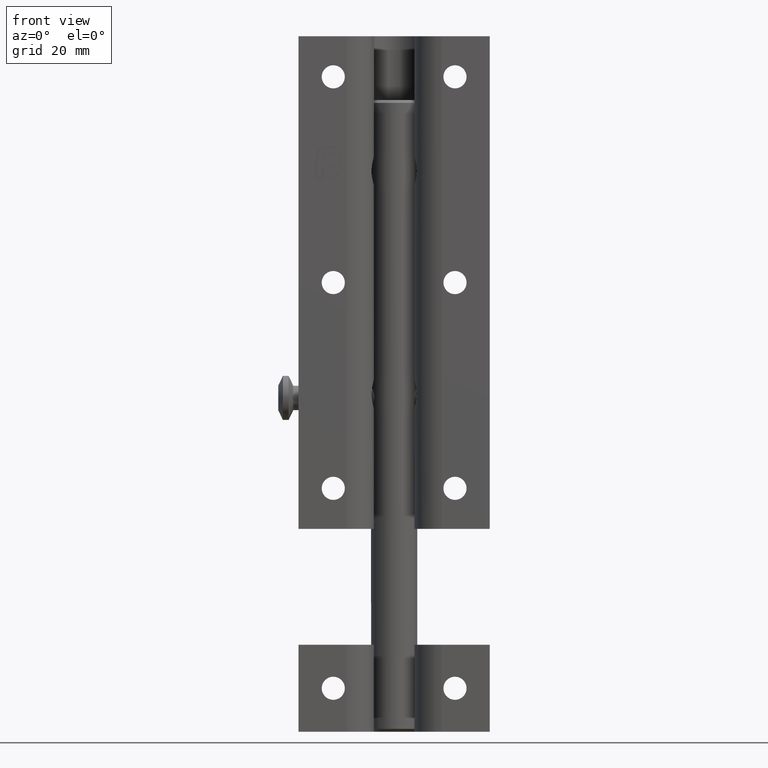
[diagram: clean part render]
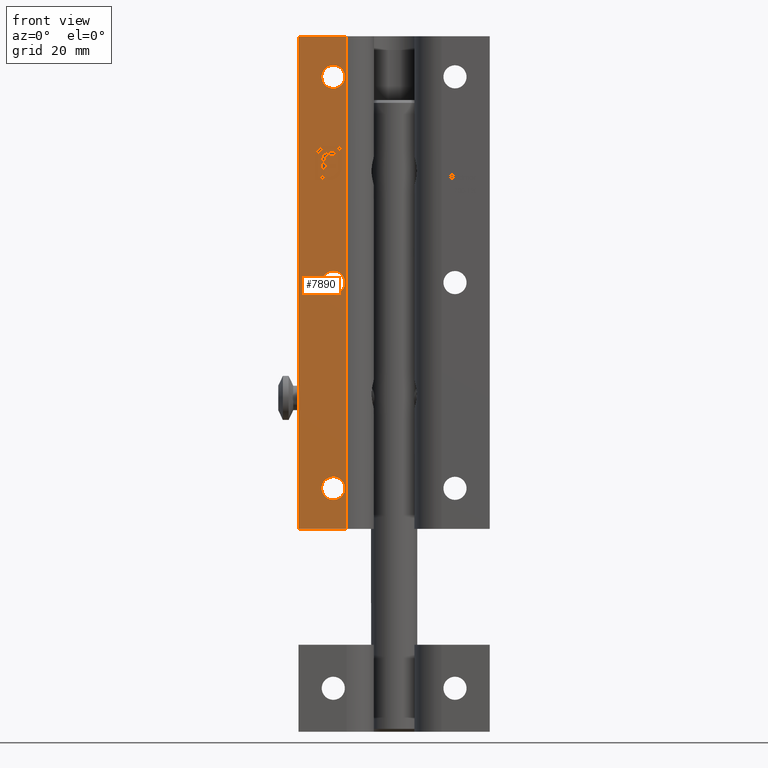
[diagram: same view with one face highlighted and labeled with its STEP entity id]
A machine part, front view. The second image highlights one B-rep face of the part: STEP entity #7890.
In plain terms, the highlighted planar face has unit normal (0, 1, 0).
Its self-contained STEP definition (entity closure, byte-faithful):
#5 = B_SPLINE_CURVE_WITH_KNOTS ( 'NONE', 3,
 ( #12365, #8863, #4157, #14692, #2925, #663, #611 ),
 .UNSPECIFIED., .F., .F.,
 ( 4, 1, 1, 1, 4 ),
 ( 0.000000000000000000, 0.2322642840963121125, 0.4732806422658384360, 0.7304408643756860053, 1.000000000000000000 ),
 .UNSPECIFIED. ) ;
#38 = LINE ( 'NONE', #7844, #11019 ) ;
#64 = VECTOR ( 'NONE', #6752, 1000.000000000000000 ) ;
#91 = EDGE_LOOP ( 'NONE', ( #8693 ) ) ;
#133 = CARTESIAN_POINT ( 'NONE',  ( -12.69690188624744565, -0.000000000000000000, 22.69015652631569324 ) ) ;
#189 = LINE ( 'NONE', #3848, #7478 ) ;
#273 = CARTESIAN_POINT ( 'NONE',  ( -9.570087980695310748, 0.000000000000000000, 19.71874271052017136 ) ) ;
#277 = CARTESIAN_POINT ( 'NONE',  ( -11.34230963247440016, -0.000000000000000000, 21.91688288526629336 ) ) ;
#363 = CARTESIAN_POINT ( 'NONE',  ( -10.45621053025209690, 0.000000000000000000, 17.84987442251265577 ) ) ;
#422 = CARTESIAN_POINT ( 'NONE',  ( -12.55352628253809222, 0.000000000000000000, 20.89089106601352341 ) ) ;
#428 = B_SPLINE_CURVE_WITH_KNOTS ( 'NONE', 3,
 ( #2141, #15184, #5580, #3324, #11550, #10405, #12762 ),
 .UNSPECIFIED., .F., .F.,
 ( 4, 1, 1, 1, 4 ),
 ( 0.000000000000000000, 0.2498987543963730462, 0.4978226843676606950, 0.7474950417136806413, 1.000000000000000000 ),
 .UNSPECIFIED. ) ;
#472 = CARTESIAN_POINT ( 'NONE',  ( -12.77022806409681799, -0.000000000000000000, 23.21551869685290370 ) ) ;
#497 = CARTESIAN_POINT ( 'NONE',  ( -16.50000000000000000, 0.000000000000000000, 42.50000000000000000 ) ) ;
#523 = CARTESIAN_POINT ( 'NONE',  ( -12.90485994491887745, 0.000000000000000000, 23.12499343832573118 ) ) ;
#584 = EDGE_CURVE ( 'NONE', #2924, #5980, #4849, .T. ) ;
#593 = CARTESIAN_POINT ( 'NONE',  ( -12.13598487829270134, 0.000000000000000000, 22.15051317937951936 ) ) ;
#611 = CARTESIAN_POINT ( 'NONE',  ( -11.92371522585509602, 0.000000000000000000, 20.99352694191741975 ) ) ;
#640 = CARTESIAN_POINT ( 'NONE',  ( -9.574044612061172188, 0.000000000000000000, 19.56686205174298010 ) ) ;
#652 = EDGE_CURVE ( 'NONE', #2136, #10787, #7094, .T. ) ;
#659 = VECTOR ( 'NONE', #3594, 1000.000000000000000 ) ;
#663 = CARTESIAN_POINT ( 'NONE',  ( -11.92316261221855278, -0.000000000000000000, 21.03165981375859062 ) ) ;
#681 = B_SPLINE_CURVE_WITH_KNOTS ( 'NONE', 3,
 ( #5861, #8212, #1184, #9416, #10594, #277, #13303 ),
 .UNSPECIFIED., .F., .F.,
 ( 4, 1, 1, 1, 4 ),
 ( 0.000000000000000000, 0.2664516210972247001, 0.5206311952944914223, 0.7658567945036373059, 0.9999999999999998890 ),
 .UNSPECIFIED. ) ;
#720 = EDGE_CURVE ( 'NONE', #886, #13895, #10531, .T. ) ;
#747 = CARTESIAN_POINT ( 'NONE',  ( -12.09908744346555309, -0.000000000000000000, 22.18455870272804731 ) ) ;
#753 = DIRECTION ( 'NONE',  ( -1.000000000000000000, -0.000000000000000000, 6.709858232943713884E-14 ) ) ;
#775 = CARTESIAN_POINT ( 'NONE',  ( -10.96383652279934573, 0.000000000000000000, 21.96973407977606030 ) ) ;
#798 = CARTESIAN_POINT ( 'NONE',  ( -11.69222207022450277, -0.000000000000000000, 21.69614473609307836 ) ) ;
#845 = ORIENTED_EDGE ( 'NONE', *, *, #8572, .T. ) ;
#886 = VERTEX_POINT ( 'NONE', #5494 ) ;
#899 = CARTESIAN_POINT ( 'NONE',  ( -10.16840848454415713, 0.000000000000000000, 20.45002332633542963 ) ) ;
#951 = CARTESIAN_POINT ( 'NONE',  ( -12.43177719702965511, -0.000000000000000000, 21.68214272666183007 ) ) ;
#963 = VECTOR ( 'NONE', #14155, 1000.000000000000000 ) ;
#965 = CARTESIAN_POINT ( 'NONE',  ( -13.39291631043391817, -0.000000000000000000, 22.52278997167093877 ) ) ;
#979 = CARTESIAN_POINT ( 'NONE',  ( -9.131444099140257009, 0.000000000000000000, 19.43897213634508603 ) ) ;
#1022 = LINE ( 'NONE', #11764, #659 ) ;
#1049 = CARTESIAN_POINT ( 'NONE',  ( -12.13598487829270134, 0.000000000000000000, 22.15051317937951936 ) ) ;
#1059 = EDGE_CURVE ( 'NONE', #12804, #12804, #6459, .T. ) ;
#1067 = DIRECTION ( 'NONE',  ( 0.000000000000000000, 0.000000000000000000, 1.000000000000000000 ) ) ;
#1087 = ORIENTED_EDGE ( 'NONE', *, *, #7187, .T. ) ;
#1128 = CARTESIAN_POINT ( 'NONE',  ( -11.29390416917210338, 0.000000000000000000, 17.74999999999999645 ) ) ;
#1134 = CARTESIAN_POINT ( 'NONE',  ( -12.58857845192289915, 0.000000000000000000, 23.33055564719492025 ) ) ;
#1146 = VECTOR ( 'NONE', #14852, 1000.000000000000000 ) ;
#1150 = DIRECTION ( 'NONE',  ( 1.000000000000000000, -0.000000000000000000, 1.312369330855249872E-13 ) ) ;
#1174 = ORIENTED_EDGE ( 'NONE', *, *, #4021, .T. ) ;
#1184 = CARTESIAN_POINT ( 'NONE',  ( -11.07311716208377383, 0.000000000000000000, 21.96869057037744355 ) ) ;
#1228 = EDGE_CURVE ( 'NONE', #7846, #13739, #5569, .T. ) ;
#1254 = VERTEX_POINT ( 'NONE', #9173 ) ;
#1282 = CARTESIAN_POINT ( 'NONE',  ( -10.16840848454415536, 0.000000000000000000, 22.26889433170049060 ) ) ;
#1283 = CARTESIAN_POINT ( 'NONE',  ( -12.46745644286169252, 0.000000000000000000, 23.38761986358497680 ) ) ;
#1330 = LINE ( 'NONE', #4761, #1146 ) ;
#1341 = DIRECTION ( 'NONE',  ( -1.000000000000000000, -0.000000000000000000, 0.000000000000000000 ) ) ;
#1355 = EDGE_CURVE ( 'NONE', #8384, #11103, #2993, .T. ) ;
#1367 = CARTESIAN_POINT ( 'NONE',  ( -10.33875719283899741, 0.000000000000000000, 17.89448610010956031 ) ) ;
#1435 = VERTEX_POINT ( 'NONE', #5464 ) ;
#1463 = CARTESIAN_POINT ( 'NONE',  ( -12.55352628253809577, 0.000000000000000000, 19.54904362024725728 ) ) ;
#1486 = EDGE_CURVE ( 'NONE', #2832, #2136, #11038, .T. ) ;
#1510 = CARTESIAN_POINT ( 'NONE',  ( -10.50000000000000000, 0.000000000000000000, 35.50000000000000000 ) ) ;
#1515 = AXIS2_PLACEMENT_3D ( 'NONE', #497, #10901, #1655 ) ;
#1516 = CARTESIAN_POINT ( 'NONE',  ( -10.95184287353608887, 0.000000000000000000, 17.75123438543622356 ) ) ;
#1522 = CARTESIAN_POINT ( 'NONE',  ( -11.40161551192380784, -0.000000000000000000, 21.89592991637973540 ) ) ;
#1578 = CARTESIAN_POINT ( 'NONE',  ( -11.67179080318189932, 0.000000000000000000, 21.71780965710286182 ) ) ;
#1599 = CARTESIAN_POINT ( 'NONE',  ( -13.17139649094001363, 0.000000000000000000, 21.74337589016202799 ) ) ;
#1607 = PLANE ( 'NONE',  #1515 ) ;
#1655 = DIRECTION ( 'NONE',  ( 0.000000000000000000, -0.000000000000000000, 1.000000000000000000 ) ) ;
#1682 = CARTESIAN_POINT ( 'NONE',  ( -12.70281482930739436, 0.000000000000000000, 23.26084674597620250 ) ) ;
#1687 = EDGE_CURVE ( 'NONE', #10359, #4895, #8654, .T. ) ;
#1727 = DIRECTION ( 'NONE',  ( 0.000000000000000000, -0.000000000000000000, -1.000000000000000000 ) ) ;
#1813 = CARTESIAN_POINT ( 'NONE',  ( -9.983325436185072732, -0.000000000000000000, 18.68546741005317813 ) ) ;
#1909 = CARTESIAN_POINT ( 'NONE',  ( -12.86434970217886864, 0.000000000000000000, 18.20719617448098759 ) ) ;
#1923 = CARTESIAN_POINT ( 'NONE',  ( -10.01911993777485499, 0.000000000000000000, 18.64806391415908138 ) ) ;
#1951 = CARTESIAN_POINT ( 'NONE',  ( -9.343350340935980824, 0.000000000000000000, 18.79821984933514756 ) ) ;
#1984 = AXIS2_PLACEMENT_3D ( 'NONE', #1510, #3845, #2811 ) ;
#1989 = VERTEX_POINT ( 'NONE', #3462 ) ;
#2025 = CARTESIAN_POINT ( 'NONE',  ( -10.85303642949400427, 0.000000000000000000, 22.56805458362491024 ) ) ;
#2101 = EDGE_CURVE ( 'NONE', #6298, #4169, #14548, .T. ) ;
#2136 = VERTEX_POINT ( 'NONE', #11080 ) ;
#2141 = CARTESIAN_POINT ( 'NONE',  ( -12.21529441876389122, 0.000000000000000000, 23.48128061581525117 ) ) ;
#2144 = VERTEX_POINT ( 'NONE', #14356 ) ;
#2176 = VERTEX_POINT ( 'NONE', #14752 ) ;
#2192 = CARTESIAN_POINT ( 'NONE',  ( -11.08163451673449984, 0.000000000000000000, 18.20719617448098759 ) ) ;
#2212 = VECTOR ( 'NONE', #6517, 1000.000000000000000 ) ;
#2233 = CARTESIAN_POINT ( 'NONE',  ( -13.63236929630062910, 0.000000000000000000, 21.59184744576626613 ) ) ;
#2243 = VECTOR ( 'NONE', #1341, 1000.000000000000000 ) ;
#2311 = CARTESIAN_POINT ( 'NONE',  ( -8.192006389780432940, 0.000000000000000000, 42.50000000000000000 ) ) ;
#2351 = CARTESIAN_POINT ( 'NONE',  ( -13.37228065622598550, 0.000000000000000000, 22.55989036622345978 ) ) ;
#2355 = CARTESIAN_POINT ( 'NONE',  ( -13.59848727808208046, 0.000000000000000000, 21.97507104235164022 ) ) ;
#2381 = VERTEX_POINT ( 'NONE', #10604 ) ;
#2390 = DIRECTION ( 'NONE',  ( 1.000000000000000000, -0.000000000000000000, -4.600057448358230921E-14 ) ) ;
#2391 = EDGE_CURVE ( 'NONE', #11697, #10359, #13993, .T. ) ;
#2439 = CARTESIAN_POINT ( 'NONE',  ( -10.50397396307363884, 0.000000000000000000, 18.31455321570878425 ) ) ;
#2494 = CARTESIAN_POINT ( 'NONE',  ( -10.78257826070950465, 0.000000000000000000, 18.23300091817587187 ) ) ;
#2527 = CARTESIAN_POINT ( 'NONE',  ( -11.81550724455764367, 0.000000000000000000, 23.09943735043959379 ) ) ;
#2543 = CARTESIAN_POINT ( 'NONE',  ( -11.60064548011215280, 0.000000000000000000, 22.46541870772101035 ) ) ;
#2544 = EDGE_CURVE ( 'NONE', #11103, #3360, #3709, .T. ) ;
#2579 = CARTESIAN_POINT ( 'NONE',  ( -10.16840848454415713, 0.000000000000000000, 21.96973407977606030 ) ) ;
#2599 = CARTESIAN_POINT ( 'NONE',  ( -10.49999999999999467, 0.000000000000000000, 2.000000000000004441 ) ) ;
#2618 = B_SPLINE_CURVE_WITH_KNOTS ( 'NONE', 3,
 ( #2192, #3472, #10952, #2494, #9472, #2439, #9870, #8637, #7151, #10649, #5153 ),
 .UNSPECIFIED., .F., .F.,
 ( 4, 1, 1, 1, 1, 1, 1, 1, 4 ),
 ( 0.000000000000000000, 0.1294032821351885076, 0.2549994687370267243, 0.3777808395091697413, 0.4991864763960283669, 0.6218805796820386922, 0.7445786510184780882, 0.8700972851667342356, 1.000000000000000000 ),
 .UNSPECIFIED. ) ;
#2621 = CARTESIAN_POINT ( 'NONE',  ( -10.57615692093563453, 0.000000000000000000, 17.81456692889019067 ) ) ;
#2641 = CARTESIAN_POINT ( 'NONE',  ( -12.83955454898440074, 0.000000000000000000, 22.54474171912547575 ) ) ;
#2714 = DIRECTION ( 'NONE',  ( 0.000000000000000000, -0.000000000000000000, 1.000000000000000000 ) ) ;
#2716 = CARTESIAN_POINT ( 'NONE',  ( -10.15069199082982543, -0.000000000000000000, 17.98945298586670560 ) ) ;
#2774 = VECTOR ( 'NONE', #10888, 1000.000000000000000 ) ;
#2777 = CARTESIAN_POINT ( 'NONE',  ( -13.24196459429893125, 0.000000000000000000, 22.77055036192248494 ) ) ;
#2811 = DIRECTION ( 'NONE',  ( 0.000000000000000000, 0.000000000000000000, 1.000000000000000000 ) ) ;
#2829 = DIRECTION ( 'NONE',  ( 0.000000000000000000, -0.000000000000000000, 1.000000000000000000 ) ) ;
#2832 = VERTEX_POINT ( 'NONE', #6139 ) ;
#2863 = EDGE_CURVE ( 'NONE', #14317, #5604, #6623, .T. ) ;
#2865 = DIRECTION ( 'NONE',  ( 0.000000000000000000, -0.000000000000000000, -1.000000000000000000 ) ) ;
#2869 = ORIENTED_EDGE ( 'NONE', *, *, #3767, .T. ) ;
#2924 = VERTEX_POINT ( 'NONE', #5228 ) ;
#2925 = CARTESIAN_POINT ( 'NONE',  ( -11.92208280351890792, 0.000000000000000000, 21.10617155945853440 ) ) ;
#2963 = CARTESIAN_POINT ( 'NONE',  ( -11.89627783024037733, 0.000000000000000000, 22.33915258651542146 ) ) ;
#2970 = CARTESIAN_POINT ( 'NONE',  ( -10.16840848454415891, 0.000000000000000000, 20.15494518311173522 ) ) ;
#2993 = B_SPLINE_CURVE_WITH_KNOTS ( 'NONE', 3,
 ( #14355, #9667, #2641, #3827, #12035, #13217, #7487, #13266, #1599, #5195, #12179 ),
 .UNSPECIFIED., .F., .F.,
 ( 4, 1, 1, 1, 1, 1, 1, 1, 4 ),
 ( 0.000000000000000000, 0.1299027148332645987, 0.2554213489815209126, 0.3781194203179605862, 0.5008135236039703564, 0.6222191604908284823, 0.7450005312629731646, 0.8705967178648099658, 1.000000000000000000 ),
 .UNSPECIFIED. ) ;
#3013 = CARTESIAN_POINT ( 'NONE',  ( -9.570087980695310748, 0.000000000000000000, 19.71874271052017136 ) ) ;
#3018 = CARTESIAN_POINT ( 'NONE',  ( -16.50000000000000000, 0.000000000000000000, 42.50000000000000000 ) ) ;
#3115 = CARTESIAN_POINT ( 'NONE',  ( -9.912773491867467257, 0.000000000000000000, 18.75919072627215911 ) ) ;
#3134 = ORIENTED_EDGE ( 'NONE', *, *, #652, .T. ) ;
#3142 = CARTESIAN_POINT ( 'NONE',  ( -9.233543222527430316, 0.000000000000000000, 19.03942691184012759 ) ) ;
#3168 = CARTESIAN_POINT ( 'NONE',  ( -9.595386822214036826, 0.000000000000000000, 19.41870722252634707 ) ) ;
#3189 = LINE ( 'NONE', #14052, #6086 ) ;
#3207 = DIRECTION ( 'NONE',  ( -0.000000000000000000, -0.000000000000000000, -1.000000000000000000 ) ) ;
#3255 = CARTESIAN_POINT ( 'NONE',  ( -9.113657664327087460, -0.000000000000000000, 19.67165288250924249 ) ) ;
#3324 = CARTESIAN_POINT ( 'NONE',  ( -11.94339715995553775, 0.000000000000000000, 23.54203786336050896 ) ) ;
#3346 = VERTEX_POINT ( 'NONE', #3892 ) ;
#3352 = CARTESIAN_POINT ( 'NONE',  ( -9.179779169747337875, -0.000000000000000000, 19.21199879414517042 ) ) ;
#3357 = CARTESIAN_POINT ( 'NONE',  ( -11.92371522585509602, 0.000000000000000000, 20.45002332633542963 ) ) ;
#3360 = VERTEX_POINT ( 'NONE', #9681 ) ;
#3419 = CIRCLE ( 'NONE', #11551, 2.000000000000001776 ) ;
#3462 = CARTESIAN_POINT ( 'NONE',  ( -12.21529441876389122, 0.000000000000000000, 23.48128061581525117 ) ) ;
#3472 = CARTESIAN_POINT ( 'NONE',  ( -11.03062479321623712, -0.000000000000000000, 18.20846751926227469 ) ) ;
#3480 = DIRECTION ( 'NONE',  ( 0.000000000000000000, -0.000000000000000000, 1.000000000000000000 ) ) ;
#3539 = CARTESIAN_POINT ( 'NONE',  ( -13.63195476791612570, -0.000000000000000000, 21.63543376702229892 ) ) ;
#3541 = CARTESIAN_POINT ( 'NONE',  ( -11.66362658578045242, 0.000000000000000000, 23.56059015628644104 ) ) ;
#3573 = CARTESIAN_POINT ( 'NONE',  ( -11.92371522585509602, 0.000000000000000000, 19.85986703988802660 ) ) ;
#3592 = VERTEX_POINT ( 'NONE', #3541 ) ;
#3594 = DIRECTION ( 'NONE',  ( 1.000000000000000000, -0.000000000000000000, 0.000000000000000000 ) ) ;
#3642 = ORIENTED_EDGE ( 'NONE', *, *, #15198, .T. ) ;
#3659 = CARTESIAN_POINT ( 'NONE',  ( -11.96366207377427493, 0.000000000000000000, 23.07809514028672027 ) ) ;
#3663 = CARTESIAN_POINT ( 'NONE',  ( -12.66470899290425045, -0.000000000000000000, 23.28409954903684920 ) ) ;
#3709 = LINE ( 'NONE', #13422, #2774 ) ;
#3715 = CARTESIAN_POINT ( 'NONE',  ( -12.25830569245485790, -0.000000000000000000, 23.46756323448721915 ) ) ;
#3767 = EDGE_CURVE ( 'NONE', #4182, #1435, #8803, .T. ) ;
#3812 = CARTESIAN_POINT ( 'NONE',  ( -12.55352628253809222, 0.000000000000000000, 18.20719617448098404 ) ) ;
#3827 = CARTESIAN_POINT ( 'NONE',  ( -12.92770064602586011, 0.000000000000000000, 22.42420653605673309 ) ) ;
#3845 = DIRECTION ( 'NONE',  ( 0.000000000000000000, 1.000000000000000000, 0.000000000000000000 ) ) ;
#3848 = CARTESIAN_POINT ( 'NONE',  ( -10.56612250367175321, 0.000000000000000000, 21.96973407977606030 ) ) ;
#3892 = CARTESIAN_POINT ( 'NONE',  ( -11.66362658578045242, 0.000000000000000000, 23.10339398180545345 ) ) ;
#3898 = CARTESIAN_POINT ( 'NONE',  ( -12.46722257418198510, -0.000000000000000000, 21.57696196464313587 ) ) ;
#3954 = CARTESIAN_POINT ( 'NONE',  ( -11.53419558088301855, 0.000000000000000000, 21.82801641021893246 ) ) ;
#3963 = CARTESIAN_POINT ( 'NONE',  ( -13.63236929630062733, 0.000000000000000000, 19.67092372288312419 ) ) ;
#4021 = EDGE_CURVE ( 'NONE', #3360, #14070, #6042, .T. ) ;
#4084 = VECTOR ( 'NONE', #4771, 1000.000000000000000 ) ;
#4109 = CARTESIAN_POINT ( 'NONE',  ( -9.112891806214323154, 0.000000000000000000, 23.56059015628644104 ) ) ;
#4118 = VERTEX_POINT ( 'NONE', #775 ) ;
#4157 = CARTESIAN_POINT ( 'NONE',  ( -11.89097739048168023, 0.000000000000000000, 21.31591133272551630 ) ) ;
#4169 = VERTEX_POINT ( 'NONE', #2579 ) ;
#4182 = VERTEX_POINT ( 'NONE', #273 ) ;
#4183 = EDGE_CURVE ( 'NONE', #8385, #8385, #7709, .T. ) ;
#4224 = LINE ( 'NONE', #3018, #4628 ) ;
#4237 = CARTESIAN_POINT ( 'NONE',  ( -9.743175017794431625, 0.000000000000000000, 19.00617576276632903 ) ) ;
#4393 = AXIS2_PLACEMENT_3D ( 'NONE', #7520, #11076, #9846 ) ;
#4452 = EDGE_CURVE ( 'NONE', #1254, #2924, #4224, .T. ) ;
#4468 = CARTESIAN_POINT ( 'NONE',  ( -11.86073412018679818, 0.000000000000000000, 21.41106834616281063 ) ) ;
#4472 = CARTESIAN_POINT ( 'NONE',  ( -11.04606185519962835, 0.000000000000000000, 19.85986703988802660 ) ) ;
#4496 = CARTESIAN_POINT ( 'NONE',  ( -9.115180789155340690, 0.000000000000000000, 19.57800148023736497 ) ) ;
#4515 = CARTESIAN_POINT ( 'NONE',  ( -12.16925850918632968, -0.000000000000000000, 22.11518194609195831 ) ) ;
#4530 = CARTESIAN_POINT ( 'NONE',  ( -13.53249487378796800, 0.000000000000000000, 22.21727143224866552 ) ) ;
#4540 = EDGE_CURVE ( 'NONE', #7977, #2176, #5037, .T. ) ;
#4546 = EDGE_CURVE ( 'NONE', #1989, #3592, #428, .T. ) ;
#4628 = VECTOR ( 'NONE', #7658, 1000.000000000000000 ) ;
#4668 = CARTESIAN_POINT ( 'NONE',  ( -11.04606185519962658, 0.000000000000000000, 20.45002332633542963 ) ) ;
#4758 = VERTEX_POINT ( 'NONE', #5471 ) ;
#4761 = CARTESIAN_POINT ( 'NONE',  ( -16.50000000000000000, 0.000000000000000000, 42.50000000000000000 ) ) ;
#4771 = DIRECTION ( 'NONE',  ( 0.000000000000000000, -0.000000000000000000, -1.000000000000000000 ) ) ;
#4822 = VECTOR ( 'NONE', #9511, 1000.000000000000000 ) ;
#4824 = ORIENTED_EDGE ( 'NONE', *, *, #4540, .T. ) ;
#4849 = LINE ( 'NONE', #12997, #14582 ) ;
#4852 = ORIENTED_EDGE ( 'NONE', *, *, #2101, .T. ) ;
#4895 = VERTEX_POINT ( 'NONE', #2233 ) ;
#4901 = DIRECTION ( 'NONE',  ( 0.000000000000000000, -0.000000000000000000, 1.000000000000000000 ) ) ;
#4914 = VECTOR ( 'NONE', #1150, 1000.000000000000000 ) ;
#4940 = CARTESIAN_POINT ( 'NONE',  ( -11.66362658578045242, 0.000000000000000000, 23.10339398180545345 ) ) ;
#4997 = EDGE_CURVE ( 'NONE', #13493, #7846, #14164, .T. ) ;
#5037 = B_SPLINE_CURVE_WITH_KNOTS ( 'NONE', 3,
 ( #5632, #951, #15101, #13846, #6809, #4515, #1049 ),
 .UNSPECIFIED., .F., .F.,
 ( 4, 1, 1, 1, 4 ),
 ( 0.000000000000000000, 0.2649994118830669709, 0.5172828026870207596, 0.7625030144762799944, 1.000000000000000000 ),
 .UNSPECIFIED. ) ;
#5072 = VERTEX_POINT ( 'NONE', #7506 ) ;
#5073 = CARTESIAN_POINT ( 'NONE',  ( -12.55352628253809222, 0.000000000000000000, 20.89089106601352341 ) ) ;
#5124 = CARTESIAN_POINT ( 'NONE',  ( -12.55276627380528254, -0.000000000000000000, 20.95977436089457413 ) ) ;
#5125 = CARTESIAN_POINT ( 'NONE',  ( -11.03804819547846350, -0.000000000000000000, 17.75041452838450340 ) ) ;
#5153 = CARTESIAN_POINT ( 'NONE',  ( -10.01911993777485499, 0.000000000000000000, 18.64806391415908138 ) ) ;
#5195 = CARTESIAN_POINT ( 'NONE',  ( -13.17390177703834908, -0.000000000000000000, 21.64285716928452885 ) ) ;
#5228 = CARTESIAN_POINT ( 'NONE',  ( -16.50000000000000000, 0.000000000000000000, -42.50000000000000000 ) ) ;
#5262 = CARTESIAN_POINT ( 'NONE',  ( -12.02449922583281428, 0.000000000000000000, 22.25338177720021449 ) ) ;
#5296 = CARTESIAN_POINT ( 'NONE',  ( -8.192006389780432940, 0.000000000000000000, -42.50000000000000000 ) ) ;
#5300 = EDGE_CURVE ( 'NONE', #7461, #4758, #5693, .T. ) ;
#5301 = CARTESIAN_POINT ( 'NONE',  ( -9.412635216524565251, 0.000000000000000000, 18.68655236762304384 ) ) ;
#5325 = VERTEX_POINT ( 'NONE', #14717 ) ;
#5367 = CARTESIAN_POINT ( 'NONE',  ( -11.60064548011215280, 0.000000000000000000, 22.46541870772101035 ) ) ;
#5464 = CARTESIAN_POINT ( 'NONE',  ( -9.570087980695310748, 0.000000000000000000, 23.10339398180545345 ) ) ;
#5471 = CARTESIAN_POINT ( 'NONE',  ( -10.85303642949400427, 0.000000000000000000, 22.56805458362491024 ) ) ;
#5474 = CARTESIAN_POINT ( 'NONE',  ( -9.821959779876365815, 0.000000000000000000, 18.88068766050782443 ) ) ;
#5476 = EDGE_CURVE ( 'NONE', #3346, #8384, #12775, .T. ) ;
#5494 = CARTESIAN_POINT ( 'NONE',  ( -11.92371522585509602, 0.000000000000000000, 20.99352694191741975 ) ) ;
#5569 = LINE ( 'NONE', #4472, #9778 ) ;
#5580 = CARTESIAN_POINT ( 'NONE',  ( -12.08087768010303797, 0.000000000000000000, 23.51844898040046417 ) ) ;
#5604 = VERTEX_POINT ( 'NONE', #10323 ) ;
#5632 = CARTESIAN_POINT ( 'NONE',  ( -12.45089040663419588, 0.000000000000000000, 21.63150221600186285 ) ) ;
#5634 = CARTESIAN_POINT ( 'NONE',  ( -11.78386173589503194, 0.000000000000000000, 21.57837093345933610 ) ) ;
#5681 = CARTESIAN_POINT ( 'NONE',  ( -10.38825919599739045, 0.000000000000000000, 23.56059015628644815 ) ) ;
#5693 = B_SPLINE_CURVE_WITH_KNOTS ( 'NONE', 3,
 ( #2543, #10605, #10187, #10242, #14934, #9155, #2025 ),
 .UNSPECIFIED., .F., .F.,
 ( 4, 1, 1, 1, 4 ),
 ( 0.000000000000000000, 0.2248631601153501802, 0.4658852411902451585, 0.7242149868173238803, 1.000000000000000000 ),
 .UNSPECIFIED. ) ;
#5744 = ORIENTED_EDGE ( 'NONE', *, *, #2544, .T. ) ;
#5765 = ORIENTED_EDGE ( 'NONE', *, *, #13688, .T. ) ;
#5777 = B_SPLINE_CURVE_WITH_KNOTS ( 'NONE', 3,
 ( #11565, #3539, #15155, #8083, #2355, #10571, #4530, #15114, #13916, #965, #15200 ),
 .UNSPECIFIED., .F., .F.,
 ( 4, 1, 1, 1, 1, 1, 1, 1, 4 ),
 ( 0.000000000000000000, 0.1288018716318679591, 0.2547452157199071032, 0.3804312053881743760, 0.5033958905705483433, 0.6270518606708698206, 0.7500326663792646897, 0.8744876280147749759, 1.000000000000000000 ),
 .UNSPECIFIED. ) ;
#5854 = ORIENTED_EDGE ( 'NONE', *, *, #7205, .T. ) ;
#5861 = CARTESIAN_POINT ( 'NONE',  ( -10.96383652279934573, 0.000000000000000000, 21.96973407977606030 ) ) ;
#5905 = VECTOR ( 'NONE', #2829, 1000.000000000000000 ) ;
#5980 = VERTEX_POINT ( 'NONE', #5296 ) ;
#5983 = DIRECTION ( 'NONE',  ( 0.000000000000000000, 1.000000000000000000, 0.000000000000000000 ) ) ;
#5990 = ORIENTED_EDGE ( 'NONE', *, *, #10569, .T. ) ;
#6002 = CARTESIAN_POINT ( 'NONE',  ( -12.21529441876389122, 0.000000000000000000, 23.48128061581525117 ) ) ;
#6042 = LINE ( 'NONE', #1909, #2212 ) ;
#6061 = ORIENTED_EDGE ( 'NONE', *, *, #1059, .T. ) ;
#6086 = VECTOR ( 'NONE', #3480, 1000.000000000000000 ) ;
#6139 = CARTESIAN_POINT ( 'NONE',  ( -9.412635216524565251, 0.000000000000000000, 18.68655236762304384 ) ) ;
#6193 = CARTESIAN_POINT ( 'NONE',  ( -12.37619353353429297, 0.000000000000000000, 22.93030694470633080 ) ) ;
#6291 = CARTESIAN_POINT ( 'NONE',  ( -12.55129858531335785, 0.000000000000000000, 21.09279812077800642 ) ) ;
#6298 = VERTEX_POINT ( 'NONE', #14216 ) ;
#6459 = CIRCLE ( 'NONE', #1984, 2.000000000000001776 ) ;
#6469 = CARTESIAN_POINT ( 'NONE',  ( -9.457819566216592477, -0.000000000000000000, 18.61786704322306107 ) ) ;
#6517 = DIRECTION ( 'NONE',  ( 1.000000000000000000, -0.000000000000000000, 0.000000000000000000 ) ) ;
#6534 = EDGE_CURVE ( 'NONE', #1254, #7537, #1330, .T. ) ;
#6538 = LINE ( 'NONE', #5681, #15197 ) ;
#6623 = B_SPLINE_CURVE_WITH_KNOTS ( 'NONE', 3,
 ( #13296, #1522, #9799, #3954, #7519, #9845, #1578 ),
 .UNSPECIFIED., .F., .F.,
 ( 4, 1, 1, 1, 4 ),
 ( 0.000000000000000000, 0.2554423222948659089, 0.5048513951452103798, 0.7519491748401705422, 0.9999999999999998890 ),
 .UNSPECIFIED. ) ;
#6652 = CARTESIAN_POINT ( 'NONE',  ( -11.84982206844733277, -0.000000000000000000, 21.44056450019064997 ) ) ;
#6719 = CARTESIAN_POINT ( 'NONE',  ( -9.389457247452286381, -0.000000000000000000, 18.72390865087411171 ) ) ;
#6752 = DIRECTION ( 'NONE',  ( -1.000000000000000000, -0.000000000000000000, 0.000000000000000000 ) ) ;
#6809 = CARTESIAN_POINT ( 'NONE',  ( -12.23688780483392868, 0.000000000000000000, 22.04337053394888812 ) ) ;
#6960 = ORIENTED_EDGE ( 'NONE', *, *, #2391, .T. ) ;
#6964 = ORIENTED_EDGE ( 'NONE', *, *, #12922, .T. ) ;
#6976 = ORIENTED_EDGE ( 'NONE', *, *, #8095, .T. ) ;
#6995 = CARTESIAN_POINT ( 'NONE',  ( -9.902141195360423254, 0.000000000000000000, 18.14023969743685427 ) ) ;
#7094 = B_SPLINE_CURVE_WITH_KNOTS ( 'NONE', 3,
 ( #14378, #2716, #14426, #1367, #363, #2621, #7217, #8548, #1516, #5125, #12161 ),
 .UNSPECIFIED., .F., .F.,
 ( 4, 1, 1, 1, 1, 1, 1, 1, 4 ),
 ( 0.000000000000000000, 0.1255123719852250797, 0.2499673336207369756, 0.3729481393291311231, 0.4966041094294526004, 0.6195687946118285661, 0.7452547842800927302, 0.8711981283681319299, 1.000000000000000000 ),
 .UNSPECIFIED. ) ;
#7151 = CARTESIAN_POINT ( 'NONE',  ( -10.12874024337528311, 0.000000000000000000, 18.54281474731621771 ) ) ;
#7187 = EDGE_CURVE ( 'NONE', #13739, #11697, #10342, .T. ) ;
#7205 = EDGE_CURVE ( 'NONE', #13438, #11900, #3189, .T. ) ;
#7216 = EDGE_CURVE ( 'NONE', #13895, #13493, #11060, .T. ) ;
#7217 = CARTESIAN_POINT ( 'NONE',  ( -10.69841092014913286, 0.000000000000000000, 17.78388201821855219 ) ) ;
#7311 = LINE ( 'NONE', #1463, #13222 ) ;
#7356 = FACE_BOUND ( 'NONE', #7586, .T. ) ;
#7401 = ORIENTED_EDGE ( 'NONE', *, *, #10673, .T. ) ;
#7461 = VERTEX_POINT ( 'NONE', #12641 ) ;
#7478 = VECTOR ( 'NONE', #12056, 1000.000000000000000 ) ;
#7487 = CARTESIAN_POINT ( 'NONE',  ( -13.11602934013383859, 0.000000000000000000, 22.03290911301982291 ) ) ;
#7506 = CARTESIAN_POINT ( 'NONE',  ( -9.112891806214323154, 0.000000000000000000, 19.71874271052017136 ) ) ;
#7519 = CARTESIAN_POINT ( 'NONE',  ( -11.60831572626010733, 0.000000000000000000, 21.77939538775736850 ) ) ;
#7520 = CARTESIAN_POINT ( 'NONE',  ( -10.49999999999999467, 0.000000000000000000, 2.830675323338755305E-15 ) ) ;
#7525 = CARTESIAN_POINT ( 'NONE',  ( -13.08317739252377976, 0.000000000000000000, 22.95836360646097773 ) ) ;
#7534 = B_SPLINE_CURVE_WITH_KNOTS ( 'NONE', 3,
 ( #12638, #10115, #3142, #11352, #1951, #6719, #8922 ),
 .UNSPECIFIED., .F., .F.,
 ( 4, 1, 1, 1, 4 ),
 ( 0.000000000000000000, 0.2531534606220277595, 0.5055606904558767045, 0.7514450677648695232, 1.000000000000000000 ),
 .UNSPECIFIED. ) ;
#7537 = VERTEX_POINT ( 'NONE', #2311 ) ;
#7586 = EDGE_LOOP ( 'NONE', ( #6061 ) ) ;
#7635 = VERTEX_POINT ( 'NONE', #4109 ) ;
#7658 = DIRECTION ( 'NONE',  ( -0.000000000000000000, -0.000000000000000000, -1.000000000000000000 ) ) ;
#7709 = CIRCLE ( 'NONE', #4393, 2.000000000000001332 ) ;
#7810 = CARTESIAN_POINT ( 'NONE',  ( -9.571416543414549949, -0.000000000000000000, 19.66774402947910616 ) ) ;
#7844 = CARTESIAN_POINT ( 'NONE',  ( -9.112891806214323154, 0.000000000000000000, 21.63966643340330620 ) ) ;
#7846 = VERTEX_POINT ( 'NONE', #13411 ) ;
#7890 = ADVANCED_FACE ( 'NONE', ( #11804, #11442, #7356, #12899, #13262 ), #1607, .F. ) ;
#7951 = CARTESIAN_POINT ( 'NONE',  ( -9.155032982100301808, 0.000000000000000000, 19.30149161619759468 ) ) ;
#7977 = VERTEX_POINT ( 'NONE', #10035 ) ;
#7994 = CARTESIAN_POINT ( 'NONE',  ( -11.92371522585509780, 0.000000000000000000, 17.75000000000000000 ) ) ;
#8025 = B_SPLINE_CURVE_WITH_KNOTS ( 'NONE', 3,
 ( #9306, #3255, #4496, #979, #7951, #3352, #11529 ),
 .UNSPECIFIED., .F., .F.,
 ( 4, 1, 1, 1, 4 ),
 ( 0.000000000000000000, 0.2525049582863171382, 0.5021773156323346976, 0.7501012456036261211, 1.000000000000000000 ),
 .UNSPECIFIED. ) ;
#8083 = CARTESIAN_POINT ( 'NONE',  ( -13.61673543005739617, 0.000000000000000000, 21.84960822790737112 ) ) ;
#8093 = CARTESIAN_POINT ( 'NONE',  ( -13.63236929630062910, 0.000000000000000000, 17.74999999999999645 ) ) ;
#8095 = EDGE_CURVE ( 'NONE', #1435, #3346, #13073, .T. ) ;
#8111 = VECTOR ( 'NONE', #1727, 1000.000000000000000 ) ;
#8147 = ORIENTED_EDGE ( 'NONE', *, *, #9091, .T. ) ;
#8190 = ORIENTED_EDGE ( 'NONE', *, *, #11361, .T. ) ;
#8212 = CARTESIAN_POINT ( 'NONE',  ( -11.00083136360322023, -0.000000000000000000, 21.96938081990924374 ) ) ;
#8263 = CARTESIAN_POINT ( 'NONE',  ( -10.11359159627730264, 0.000000000000000000, 18.01008864007463828 ) ) ;
#8344 = ORIENTED_EDGE ( 'NONE', *, *, #13408, .T. ) ;
#8376 = ORIENTED_EDGE ( 'NONE', *, *, #14498, .T. ) ;
#8384 = VERTEX_POINT ( 'NONE', #11309 ) ;
#8385 = VERTEX_POINT ( 'NONE', #2599 ) ;
#8548 = CARTESIAN_POINT ( 'NONE',  ( -10.82387373459339486, 0.000000000000000000, 17.76563386624322760 ) ) ;
#8549 = LINE ( 'NONE', #14105, #4914 ) ;
#8572 = EDGE_CURVE ( 'NONE', #5072, #11185, #8025, .T. ) ;
#8637 = CARTESIAN_POINT ( 'NONE',  ( -10.24927542644403111, 0.000000000000000000, 18.45466865027477255 ) ) ;
#8654 = LINE ( 'NONE', #3963, #5905 ) ;
#8684 = CARTESIAN_POINT ( 'NONE',  ( -11.86073412018679818, 0.000000000000000000, 21.41106834616281063 ) ) ;
#8693 = ORIENTED_EDGE ( 'NONE', *, *, #4183, .T. ) ;
#8697 = CARTESIAN_POINT ( 'NONE',  ( -11.50617382160970337, 0.000000000000000000, 18.20719617448098404 ) ) ;
#8700 = CARTESIAN_POINT ( 'NONE',  ( -12.50089946152606046, 0.000000000000000000, 21.46450010706356792 ) ) ;
#8710 = CARTESIAN_POINT ( 'NONE',  ( -13.37228065622598550, 0.000000000000000000, 22.55989036622345978 ) ) ;
#8803 = LINE ( 'NONE', #11693, #11409 ) ;
#8863 = CARTESIAN_POINT ( 'NONE',  ( -11.87069015737352906, -0.000000000000000000, 21.37974280646016467 ) ) ;
#8897 = EDGE_CURVE ( 'NONE', #12200, #886, #5, .T. ) ;
#8922 = CARTESIAN_POINT ( 'NONE',  ( -9.412635216524565251, 0.000000000000000000, 18.68655236762304384 ) ) ;
#8986 = EDGE_LOOP ( 'NONE', ( #11075 ) ) ;
#9091 = EDGE_CURVE ( 'NONE', #4895, #10810, #5777, .T. ) ;
#9116 = CARTESIAN_POINT ( 'NONE',  ( -11.67179080318189932, 0.000000000000000000, 21.71780965710286182 ) ) ;
#9155 = CARTESIAN_POINT ( 'NONE',  ( -10.92266734043530363, -0.000000000000000000, 22.56658167381950975 ) ) ;
#9173 = CARTESIAN_POINT ( 'NONE',  ( -16.50000000000000000, 0.000000000000000000, 42.50000000000000000 ) ) ;
#9175 = LINE ( 'NONE', #14869, #9721 ) ;
#9306 = CARTESIAN_POINT ( 'NONE',  ( -9.112891806214323154, 0.000000000000000000, 19.71874271052017136 ) ) ;
#9317 = CARTESIAN_POINT ( 'NONE',  ( -10.04268200419980417, -0.000000000000000000, 18.05373461258635714 ) ) ;
#9361 = CARTESIAN_POINT ( 'NONE',  ( -12.70281482930739436, 0.000000000000000000, 23.26084674597620250 ) ) ;
#9416 = CARTESIAN_POINT ( 'NONE',  ( -11.17841493783887152, 0.000000000000000000, 21.95397638039145960 ) ) ;
#9450 = EDGE_CURVE ( 'NONE', #2176, #7461, #10024, .T. ) ;
#9472 = CARTESIAN_POINT ( 'NONE',  ( -10.64057284948093951, 0.000000000000000000, 18.26633995616678163 ) ) ;
#9511 = DIRECTION ( 'NONE',  ( 0.000000000000000000, -0.000000000000000000, -1.000000000000000000 ) ) ;
#9601 = CARTESIAN_POINT ( 'NONE',  ( -12.10654276986605637, 0.000000000000000000, 23.04258955823455324 ) ) ;
#9641 = ORIENTED_EDGE ( 'NONE', *, *, #4452, .T. ) ;
#9667 = CARTESIAN_POINT ( 'NONE',  ( -12.76978760033333948, -0.000000000000000000, 22.61740618252552792 ) ) ;
#9681 = CARTESIAN_POINT ( 'NONE',  ( -13.17517312181964328, 0.000000000000000000, 18.20719617448098759 ) ) ;
#9694 = CARTESIAN_POINT ( 'NONE',  ( -12.62317857002846644, 0.000000000000000000, 22.76070847063330405 ) ) ;
#9721 = VECTOR ( 'NONE', #3207, 1000.000000000000000 ) ;
#9778 = VECTOR ( 'NONE', #753, 1000.000000000000000 ) ;
#9799 = CARTESIAN_POINT ( 'NONE',  ( -11.45774829907176162, 0.000000000000000000, 21.87453942891218261 ) ) ;
#9842 = CARTESIAN_POINT ( 'NONE',  ( -11.92371522585509602, 0.000000000000000000, 20.72177513412642114 ) ) ;
#9845 = CARTESIAN_POINT ( 'NONE',  ( -11.65060531168169256, -0.000000000000000000, 21.73836455890980091 ) ) ;
#9846 = DIRECTION ( 'NONE',  ( 0.000000000000000000, 0.000000000000000000, 1.000000000000000000 ) ) ;
#9870 = CARTESIAN_POINT ( 'NONE',  ( -10.37360423336864557, 0.000000000000000000, 18.37761430456186318 ) ) ;
#9925 = CARTESIAN_POINT ( 'NONE',  ( -13.17517312181964151, 0.000000000000000000, 21.59184744576626613 ) ) ;
#9957 = EDGE_CURVE ( 'NONE', #7635, #5072, #38, .T. ) ;
#10024 = B_SPLINE_CURVE_WITH_KNOTS ( 'NONE', 3,
 ( #593, #747, #5262, #2963, #12397, #12346, #5367 ),
 .UNSPECIFIED., .F., .F.,
 ( 4, 1, 1, 1, 4 ),
 ( 0.000000000000000000, 0.2399847455207327063, 0.4851295086310188909, 0.7356114199548237087, 1.000000000000000000 ),
 .UNSPECIFIED. ) ;
#10035 = CARTESIAN_POINT ( 'NONE',  ( -12.45089040663419588, 0.000000000000000000, 21.63150221600186285 ) ) ;
#10074 = EDGE_CURVE ( 'NONE', #7537, #5980, #9175, .T. ) ;
#10115 = CARTESIAN_POINT ( 'NONE',  ( -9.205995525854463679, -0.000000000000000000, 19.12448370639335948 ) ) ;
#10118 = CARTESIAN_POINT ( 'NONE',  ( -11.37321370964329326, 0.000000000000000000, 21.90675297410776068 ) ) ;
#10187 = CARTESIAN_POINT ( 'NONE',  ( -11.43295856774882857, 0.000000000000000000, 22.51367196005460158 ) ) ;
#10242 = CARTESIAN_POINT ( 'NONE',  ( -11.25256629452498025, 0.000000000000000000, 22.54554973081482672 ) ) ;
#10323 = CARTESIAN_POINT ( 'NONE',  ( -11.67179080318189932, 0.000000000000000000, 21.71780965710286182 ) ) ;
#10342 = LINE ( 'NONE', #10610, #4084 ) ;
#10359 = VERTEX_POINT ( 'NONE', #8093 ) ;
#10405 = CARTESIAN_POINT ( 'NONE',  ( -11.71071641379137951, -0.000000000000000000, 23.55982429817367674 ) ) ;
#10431 = ORIENTED_EDGE ( 'NONE', *, *, #5476, .T. ) ;
#10466 = ORIENTED_EDGE ( 'NONE', *, *, #9450, .T. ) ;
#10481 = EDGE_CURVE ( 'NONE', #14180, #7977, #14658, .T. ) ;
#10531 = LINE ( 'NONE', #9842, #8111 ) ;
#10569 = EDGE_CURVE ( 'NONE', #14070, #14180, #7311, .T. ) ;
#10571 = CARTESIAN_POINT ( 'NONE',  ( -13.56780236741043311, 0.000000000000000000, 22.09732504156513144 ) ) ;
#10594 = CARTESIAN_POINT ( 'NONE',  ( -11.27903873592383377, 0.000000000000000000, 21.93762217340214704 ) ) ;
#10604 = CARTESIAN_POINT ( 'NONE',  ( -10.01911993777485499, 0.000000000000000000, 18.64806391415908138 ) ) ;
#10605 = CARTESIAN_POINT ( 'NONE',  ( -11.54605742901752308, -0.000000000000000000, 22.48112685671573274 ) ) ;
#10610 = CARTESIAN_POINT ( 'NONE',  ( -11.92371522585509602, 0.000000000000000000, 17.97859808724048492 ) ) ;
#10649 = CARTESIAN_POINT ( 'NONE',  ( -10.05607577997523627, -0.000000000000000000, 18.61258169596728607 ) ) ;
#10661 = VECTOR ( 'NONE', #2865, 1000.000000000000000 ) ;
#10673 = EDGE_CURVE ( 'NONE', #4169, #4118, #189, .T. ) ;
#10689 = CARTESIAN_POINT ( 'NONE',  ( -12.34385138349310118, 0.000000000000000000, 23.44028055336102057 ) ) ;
#10704 = ORIENTED_EDGE ( 'NONE', *, *, #584, .T. ) ;
#10787 = VERTEX_POINT ( 'NONE', #14004 ) ;
#10810 = VERTEX_POINT ( 'NONE', #2351 ) ;
#10888 = DIRECTION ( 'NONE',  ( 0.000000000000000000, -0.000000000000000000, -1.000000000000000000 ) ) ;
#10901 = DIRECTION ( 'NONE',  ( 0.000000000000000000, 1.000000000000000000, 0.000000000000000000 ) ) ;
#10921 = ORIENTED_EDGE ( 'NONE', *, *, #10481, .T. ) ;
#10952 = CARTESIAN_POINT ( 'NONE',  ( -10.93010607233873621, 0.000000000000000000, 18.21097280536060481 ) ) ;
#10974 = CARTESIAN_POINT ( 'NONE',  ( -12.52990132257115086, 0.000000000000000000, 21.28511215726393502 ) ) ;
#10983 = ORIENTED_EDGE ( 'NONE', *, *, #14130, .T. ) ;
#11019 = VECTOR ( 'NONE', #13670, 1000.000000000000000 ) ;
#11038 = B_SPLINE_CURVE_WITH_KNOTS ( 'NONE', 3,
 ( #5301, #6469, #11204, #11785, #6995, #9317, #8263 ),
 .UNSPECIFIED., .F., .F.,
 ( 4, 1, 1, 1, 4 ),
 ( 0.000000000000000000, 0.2502112839297331859, 0.4976763372912422212, 0.7465535718222465755, 1.000000000000000000 ),
 .UNSPECIFIED. ) ;
#11060 = LINE ( 'NONE', #4668, #963 ) ;
#11075 = ORIENTED_EDGE ( 'NONE', *, *, #14514, .T. ) ;
#11076 = DIRECTION ( 'NONE',  ( 0.000000000000000000, 1.000000000000000000, 0.000000000000000000 ) ) ;
#11079 = CARTESIAN_POINT ( 'NONE',  ( -13.32849078317059188, -0.000000000000000000, 22.63067806754821021 ) ) ;
#11080 = CARTESIAN_POINT ( 'NONE',  ( -10.11359159627730264, 0.000000000000000000, 18.01008864007463828 ) ) ;
#11092 = B_SPLINE_CURVE_WITH_KNOTS ( 'NONE', 3,
 ( #1923, #1813, #3115, #5474, #4237, #12394, #11435, #3168, #640, #7810, #3013 ),
 .UNSPECIFIED., .F., .F.,
 ( 4, 1, 1, 1, 1, 1, 1, 1, 4 ),
 ( 0.000000000000000000, 0.1300633167253288647, 0.2563583643245337940, 0.3805938667773871020, 0.5021351644809610715, 0.6245694114804717367, 0.7464286905454021737, 0.8718125613490174119, 1.000000000000000000 ),
 .UNSPECIFIED. ) ;
#11103 = VERTEX_POINT ( 'NONE', #9925 ) ;
#11185 = VERTEX_POINT ( 'NONE', #11381 ) ;
#11192 = EDGE_CURVE ( 'NONE', #2381, #4182, #11092, .T. ) ;
#11204 = CARTESIAN_POINT ( 'NONE',  ( -9.547692338157332870, 0.000000000000000000, 18.48125026025397943 ) ) ;
#11309 = CARTESIAN_POINT ( 'NONE',  ( -12.73430538214154417, 0.000000000000000000, 22.65436202472590921 ) ) ;
#11335 = CARTESIAN_POINT ( 'NONE',  ( -11.73318042403699479, 0.000000000000000000, 21.65271328868512057 ) ) ;
#11352 = CARTESIAN_POINT ( 'NONE',  ( -9.284988453048073964, 0.000000000000000000, 18.91682534038014296 ) ) ;
#11361 = EDGE_CURVE ( 'NONE', #13579, #1989, #14763, .T. ) ;
#11381 = CARTESIAN_POINT ( 'NONE',  ( -9.192201346685514807, 0.000000000000000000, 19.16707487753673433 ) ) ;
#11409 = VECTOR ( 'NONE', #4901, 1000.000000000000000 ) ;
#11417 = EDGE_CURVE ( 'NONE', #4118, #14317, #681, .T. ) ;
#11435 = CARTESIAN_POINT ( 'NONE',  ( -9.630892404266216289, 0.000000000000000000, 19.27582652643457095 ) ) ;
#11442 = FACE_BOUND ( 'NONE', #8986, .T. ) ;
#11445 = CARTESIAN_POINT ( 'NONE',  ( -11.50617382160970337, 0.000000000000000000, 17.74999999999999645 ) ) ;
#11471 = ORIENTED_EDGE ( 'NONE', *, *, #12735, .T. ) ;
#11529 = CARTESIAN_POINT ( 'NONE',  ( -9.192201346685514807, 0.000000000000000000, 19.16707487753673433 ) ) ;
#11550 = CARTESIAN_POINT ( 'NONE',  ( -11.80436781606326235, 0.000000000000000000, 23.55830117334541640 ) ) ;
#11551 = AXIS2_PLACEMENT_3D ( 'NONE', #12883, #5983, #1067 ) ;
#11565 = CARTESIAN_POINT ( 'NONE',  ( -13.63236929630062910, 0.000000000000000000, 21.59184744576626613 ) ) ;
#11693 = CARTESIAN_POINT ( 'NONE',  ( -9.570087980695310748, 0.000000000000000000, 21.41106834616281063 ) ) ;
#11697 = VERTEX_POINT ( 'NONE', #7994 ) ;
#11764 = CARTESIAN_POINT ( 'NONE',  ( -10.51072245701907981, 0.000000000000000000, 22.56805458362490313 ) ) ;
#11785 = CARTESIAN_POINT ( 'NONE',  ( -9.715572078983106152, 0.000000000000000000, 18.30173343272026543 ) ) ;
#11804 = FACE_OUTER_BOUND ( 'NONE', #13211, .T. ) ;
#11900 = VERTEX_POINT ( 'NONE', #8697 ) ;
#11917 = CARTESIAN_POINT ( 'NONE',  ( -12.73430538214154417, 0.000000000000000000, 22.65436202472590921 ) ) ;
#12035 = CARTESIAN_POINT ( 'NONE',  ( -13.00475499173876059, 0.000000000000000000, 22.29987772913212396 ) ) ;
#12056 = DIRECTION ( 'NONE',  ( -1.000000000000000000, -0.000000000000000000, -7.082628134773975116E-14 ) ) ;
#12066 = CARTESIAN_POINT ( 'NONE',  ( -11.71462526682151584, -0.000000000000000000, 23.10206541908621958 ) ) ;
#12087 = B_SPLINE_CURVE_WITH_KNOTS ( 'NONE', 3,
 ( #8710, #11079, #2777, #7525, #523, #472, #1682 ),
 .UNSPECIFIED., .F., .F.,
 ( 4, 1, 1, 1, 4 ),
 ( 0.000000000000000000, 0.2547985474406913586, 0.5034667995540872409, 0.7513745702873916299, 1.000000000000000000 ),
 .UNSPECIFIED. ) ;
#12161 = CARTESIAN_POINT ( 'NONE',  ( -11.08163451673449806, 0.000000000000000000, 17.74999999999999645 ) ) ;
#12179 = CARTESIAN_POINT ( 'NONE',  ( -13.17517312181964151, 0.000000000000000000, 21.59184744576626613 ) ) ;
#12200 = VERTEX_POINT ( 'NONE', #8684 ) ;
#12259 = ORIENTED_EDGE ( 'NONE', *, *, #5300, .T. ) ;
#12346 = CARTESIAN_POINT ( 'NONE',  ( -11.65284479606997614, -0.000000000000000000, 22.44717350959062685 ) ) ;
#12365 = CARTESIAN_POINT ( 'NONE',  ( -11.86073412018679818, 0.000000000000000000, 21.41106834616281063 ) ) ;
#12394 = CARTESIAN_POINT ( 'NONE',  ( -9.679461384025891846, 0.000000000000000000, 19.13840253113542289 ) ) ;
#12397 = CARTESIAN_POINT ( 'NONE',  ( -11.75449777764632664, 0.000000000000000000, 22.41164279897934009 ) ) ;
#12406 = EDGE_LOOP ( 'NONE', ( #12621, #13307, #14029, #845, #6964, #14638, #3134, #11471, #5854, #3642, #5765, #13028, #2869, #6976, #10431, #13544, #5744, #1174, #5990, #10921, #4824, #10466, #12259, #8376, #4852, #7401, #14350, #12991, #8344, #12769, #12875, #13958, #13528, #13611, #1087, #6960, #12569, #8147, #10983, #8190 ) ) ;
#12569 = ORIENTED_EDGE ( 'NONE', *, *, #1687, .T. ) ;
#12621 = ORIENTED_EDGE ( 'NONE', *, *, #4546, .T. ) ;
#12638 = CARTESIAN_POINT ( 'NONE',  ( -9.192201346685514807, 0.000000000000000000, 19.16707487753673433 ) ) ;
#12641 = CARTESIAN_POINT ( 'NONE',  ( -11.60064548011215280, 0.000000000000000000, 22.46541870772101035 ) ) ;
#12700 = B_SPLINE_CURVE_WITH_KNOTS ( 'NONE', 3,
 ( #9116, #798, #11335, #5634, #13796, #6652, #4468 ),
 .UNSPECIFIED., .F., .F.,
 ( 4, 1, 1, 1, 4 ),
 ( 0.000000000000000000, 0.2455219258146063843, 0.4921953144302105287, 0.7406999461853253086, 1.000000000000000000 ),
 .UNSPECIFIED. ) ;
#12735 = EDGE_CURVE ( 'NONE', #10787, #13438, #14099, .T. ) ;
#12762 = CARTESIAN_POINT ( 'NONE',  ( -11.66362658578045242, 0.000000000000000000, 23.56059015628644104 ) ) ;
#12769 = ORIENTED_EDGE ( 'NONE', *, *, #8897, .T. ) ;
#12775 = B_SPLINE_CURVE_WITH_KNOTS ( 'NONE', 3,
 ( #4940, #12066, #2527, #3659, #9601, #13199, #6193, #14285, #9694, #133, #11917 ),
 .UNSPECIFIED., .F., .F.,
 ( 4, 1, 1, 1, 1, 1, 1, 1, 4 ),
 ( 0.000000000000000000, 0.1281874386509823660, 0.2535713094545973267, 0.3754305885195290404, 0.4978648355190394836, 0.6194061332226126204, 0.7436416356754677048, 0.8699366832746724398, 1.000000000000000000 ),
 .UNSPECIFIED. ) ;
#12804 = VERTEX_POINT ( 'NONE', #13119 ) ;
#12810 = CARTESIAN_POINT ( 'NONE',  ( -10.61685728323788425, 0.000000000000000000, 23.10339398180545700 ) ) ;
#12875 = ORIENTED_EDGE ( 'NONE', *, *, #720, .T. ) ;
#12883 = CARTESIAN_POINT ( 'NONE',  ( -10.50000000000000000, 0.000000000000000000, -35.50000000000000000 ) ) ;
#12899 = FACE_BOUND ( 'NONE', #91, .T. ) ;
#12922 = EDGE_CURVE ( 'NONE', #11185, #2832, #7534, .T. ) ;
#12949 = DIRECTION ( 'NONE',  ( -1.000000000000000000, -0.000000000000000000, 0.000000000000000000 ) ) ;
#12991 = ORIENTED_EDGE ( 'NONE', *, *, #2863, .T. ) ;
#12997 = CARTESIAN_POINT ( 'NONE',  ( -16.50000000000000000, 0.000000000000000000, -42.50000000000000000 ) ) ;
#13028 = ORIENTED_EDGE ( 'NONE', *, *, #11192, .T. ) ;
#13038 = DIRECTION ( 'NONE',  ( 1.000000000000000000, 0.000000000000000000, 0.000000000000000000 ) ) ;
#13073 = LINE ( 'NONE', #12810, #64 ) ;
#13119 = CARTESIAN_POINT ( 'NONE',  ( -10.50000000000000000, 0.000000000000000000, 37.50000000000000000 ) ) ;
#13199 = CARTESIAN_POINT ( 'NONE',  ( -12.24396676516520444, 0.000000000000000000, 22.99402057847487413 ) ) ;
#13211 = EDGE_LOOP ( 'NONE', ( #10704, #14064, #14444, #9641 ) ) ;
#13217 = CARTESIAN_POINT ( 'NONE',  ( -13.06781608059184308, 0.000000000000000000, 22.16950799942712891 ) ) ;
#13222 = VECTOR ( 'NONE', #2714, 1000.000000000000000 ) ;
#13262 = FACE_BOUND ( 'NONE', #12406, .T. ) ;
#13266 = CARTESIAN_POINT ( 'NONE',  ( -13.14936837812476433, 0.000000000000000000, 21.89090370179127021 ) ) ;
#13296 = CARTESIAN_POINT ( 'NONE',  ( -11.37321370964329326, 0.000000000000000000, 21.90675297410776068 ) ) ;
#13303 = CARTESIAN_POINT ( 'NONE',  ( -11.37321370964329326, 0.000000000000000000, 21.90675297410776068 ) ) ;
#13307 = ORIENTED_EDGE ( 'NONE', *, *, #13637, .T. ) ;
#13408 = EDGE_CURVE ( 'NONE', #5604, #12200, #12700, .T. ) ;
#13411 = CARTESIAN_POINT ( 'NONE',  ( -10.16840848454415713, 0.000000000000000000, 19.85986703988802660 ) ) ;
#13422 = CARTESIAN_POINT ( 'NONE',  ( -13.17517312181963796, 0.000000000000000000, 19.89952181012361621 ) ) ;
#13438 = VERTEX_POINT ( 'NONE', #11445 ) ;
#13493 = VERTEX_POINT ( 'NONE', #899 ) ;
#13528 = ORIENTED_EDGE ( 'NONE', *, *, #4997, .T. ) ;
#13544 = ORIENTED_EDGE ( 'NONE', *, *, #1355, .T. ) ;
#13579 = VERTEX_POINT ( 'NONE', #15004 ) ;
#13611 = ORIENTED_EDGE ( 'NONE', *, *, #1228, .T. ) ;
#13637 = EDGE_CURVE ( 'NONE', #3592, #7635, #6538, .T. ) ;
#13670 = DIRECTION ( 'NONE',  ( 0.000000000000000000, -0.000000000000000000, -1.000000000000000000 ) ) ;
#13688 = EDGE_CURVE ( 'NONE', #5325, #2381, #2618, .T. ) ;
#13737 = VECTOR ( 'NONE', #12949, 1000.000000000000000 ) ;
#13739 = VERTEX_POINT ( 'NONE', #3573 ) ;
#13796 = CARTESIAN_POINT ( 'NONE',  ( -11.82845226569966002, 0.000000000000000000, 21.49832879680869269 ) ) ;
#13846 = CARTESIAN_POINT ( 'NONE',  ( -12.32088731304080476, 0.000000000000000000, 21.91846775192952634 ) ) ;
#13895 = VERTEX_POINT ( 'NONE', #3357 ) ;
#13916 = CARTESIAN_POINT ( 'NONE',  ( -13.43401376862301966, 0.000000000000000000, 22.44890174411307981 ) ) ;
#13958 = ORIENTED_EDGE ( 'NONE', *, *, #7216, .T. ) ;
#13993 = LINE ( 'NONE', #14204, #2243 ) ;
#14004 = CARTESIAN_POINT ( 'NONE',  ( -11.08163451673449806, 0.000000000000000000, 17.74999999999999645 ) ) ;
#14029 = ORIENTED_EDGE ( 'NONE', *, *, #9957, .T. ) ;
#14052 = CARTESIAN_POINT ( 'NONE',  ( -11.50617382160970514, 0.000000000000000000, 17.97859808724049557 ) ) ;
#14064 = ORIENTED_EDGE ( 'NONE', *, *, #10074, .F. ) ;
#14070 = VERTEX_POINT ( 'NONE', #3812 ) ;
#14099 = LINE ( 'NONE', #1128, #13737 ) ;
#14105 = CARTESIAN_POINT ( 'NONE',  ( -11.29390416917209983, 0.000000000000000000, 18.20719617448098049 ) ) ;
#14130 = EDGE_CURVE ( 'NONE', #10810, #13579, #12087, .T. ) ;
#14155 = DIRECTION ( 'NONE',  ( 1.000000000000000000, -0.000000000000000000, 0.000000000000000000 ) ) ;
#14164 = LINE ( 'NONE', #2970, #10661 ) ;
#14180 = VERTEX_POINT ( 'NONE', #422 ) ;
#14204 = CARTESIAN_POINT ( 'NONE',  ( -13.09294778941936421, 0.000000000000000000, 17.74999999999999645 ) ) ;
#14216 = CARTESIAN_POINT ( 'NONE',  ( -10.16840848454415713, 0.000000000000000000, 22.56805458362491024 ) ) ;
#14285 = CARTESIAN_POINT ( 'NONE',  ( -12.50168163579280289, 0.000000000000000000, 22.85152218262438950 ) ) ;
#14317 = VERTEX_POINT ( 'NONE', #10118 ) ;
#14350 = ORIENTED_EDGE ( 'NONE', *, *, #11417, .T. ) ;
#14355 = CARTESIAN_POINT ( 'NONE',  ( -12.73430538214154417, 0.000000000000000000, 22.65436202472590921 ) ) ;
#14356 = CARTESIAN_POINT ( 'NONE',  ( -10.50000000000000000, 0.000000000000000000, -33.49999999999999289 ) ) ;
#14378 = CARTESIAN_POINT ( 'NONE',  ( -10.11359159627730264, 0.000000000000000000, 18.01008864007463828 ) ) ;
#14426 = CARTESIAN_POINT ( 'NONE',  ( -10.22458021838768616, 0.000000000000000000, 17.94835552767760234 ) ) ;
#14444 = ORIENTED_EDGE ( 'NONE', *, *, #6534, .F. ) ;
#14498 = EDGE_CURVE ( 'NONE', #4758, #6298, #1022, .T. ) ;
#14514 = EDGE_CURVE ( 'NONE', #2144, #2144, #3419, .T. ) ;
#14548 = LINE ( 'NONE', #1282, #4822 ) ;
#14579 = CARTESIAN_POINT ( 'NONE',  ( -12.45089040663419588, 0.000000000000000000, 21.63150221600186285 ) ) ;
#14582 = VECTOR ( 'NONE', #13038, 1000.000000000000000 ) ;
#14638 = ORIENTED_EDGE ( 'NONE', *, *, #1486, .T. ) ;
#14658 = B_SPLINE_CURVE_WITH_KNOTS ( 'NONE', 3,
 ( #5073, #5124, #6291, #10974, #8700, #3898, #14579 ),
 .UNSPECIFIED., .F., .F.,
 ( 4, 1, 1, 1, 4 ),
 ( 0.000000000000000000, 0.2751219686788914376, 0.5313009309934254576, 0.7726965783298350710, 0.9999999999999998890 ),
 .UNSPECIFIED. ) ;
#14692 = CARTESIAN_POINT ( 'NONE',  ( -11.91026270321789227, 0.000000000000000000, 21.21422426566363484 ) ) ;
#14717 = CARTESIAN_POINT ( 'NONE',  ( -11.08163451673449984, 0.000000000000000000, 18.20719617448098759 ) ) ;
#14752 = CARTESIAN_POINT ( 'NONE',  ( -12.13598487829270134, 0.000000000000000000, 22.15051317937951936 ) ) ;
#14763 = B_SPLINE_CURVE_WITH_KNOTS ( 'NONE', 3,
 ( #9361, #3663, #1134, #1283, #10689, #3715, #6002 ),
 .UNSPECIFIED., .F., .F.,
 ( 4, 1, 1, 1, 4 ),
 ( 0.000000000000000000, 0.2494004055988102431, 0.4982698082868720069, 0.7477365097776051961, 1.000000000000000000 ),
 .UNSPECIFIED. ) ;
#14852 = DIRECTION ( 'NONE',  ( 1.000000000000000000, 0.000000000000000000, 0.000000000000000000 ) ) ;
#14869 = CARTESIAN_POINT ( 'NONE',  ( -8.192006389780432940, 0.000000000000000000, 42.50000000000000000 ) ) ;
#14934 = CARTESIAN_POINT ( 'NONE',  ( -11.05752201137595847, 0.000000000000000000, 22.56372907912487236 ) ) ;
#15004 = CARTESIAN_POINT ( 'NONE',  ( -12.70281482930739436, 0.000000000000000000, 23.26084674597620250 ) ) ;
#15101 = CARTESIAN_POINT ( 'NONE',  ( -12.39446792693608046, 0.000000000000000000, 21.78099375843411423 ) ) ;
#15114 = CARTESIAN_POINT ( 'NONE',  ( -13.48788319619106346, 0.000000000000000000, 22.33472476966177211 ) ) ;
#15155 = CARTESIAN_POINT ( 'NONE',  ( -13.63113491086440021, 0.000000000000000000, 21.72163908896467177 ) ) ;
#15184 = CARTESIAN_POINT ( 'NONE',  ( -12.17037050215545868, -0.000000000000000000, 23.49370279275342455 ) ) ;
#15197 = VECTOR ( 'NONE', #2390, 1000.000000000000000 ) ;
#15198 = EDGE_CURVE ( 'NONE', #11900, #5325, #8549, .T. ) ;
#15200 = CARTESIAN_POINT ( 'NONE',  ( -13.37228065622598550, 0.000000000000000000, 22.55989036622345978 ) ) ;